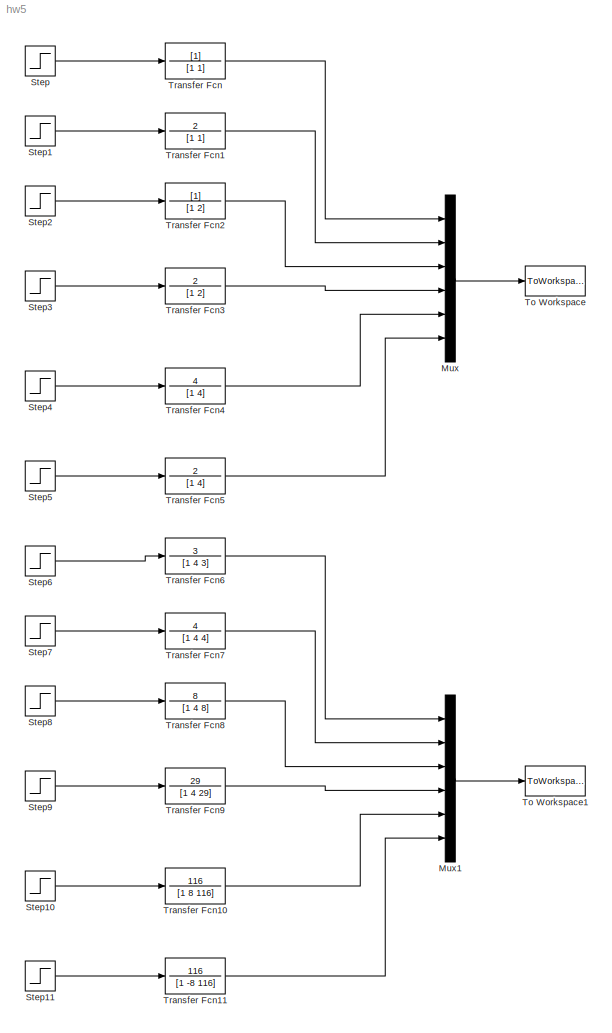
MODEL hw5
KIND model
BLOCK [Mux] Mux
  DisplayOption = bar
  Inputs = 6
  Ports = [6, 1]
BLOCK [Mux] Mux1
  DisplayOption = bar
  Inputs = 6
  Ports = [6, 1]
BLOCK [Step] Step
  SampleTime = 0
  Time = 0
BLOCK [Step] Step1
  SampleTime = 0
  Time = 0
BLOCK [Step] Step10
  SampleTime = 0
  Time = 0
BLOCK [Step] Step11
  SampleTime = 0
  Time = 0
BLOCK [Step] Step2
  SampleTime = 0
  Time = 0
BLOCK [Step] Step3
  SampleTime = 0
  Time = 0
BLOCK [Step] Step4
  SampleTime = 0
  Time = 0
BLOCK [Step] Step5
  SampleTime = 0
  Time = 0
BLOCK [Step] Step6
  SampleTime = 0
  Time = 0
BLOCK [Step] Step7
  SampleTime = 0
  Time = 0
BLOCK [Step] Step8
  SampleTime = 0
  Time = 0
BLOCK [Step] Step9
  SampleTime = 0
  Time = 0
BLOCK [ToWorkspace] To Workspace
  MaxDataPoints = inf
  SampleTime = -1
  SaveFormat = Array
  VariableName = x
BLOCK [ToWorkspace] To Workspace1
  MaxDataPoints = inf
  SampleTime = -1
  SaveFormat = Array
  VariableName = x1
BLOCK [TransferFcn] Transfer Fcn
  Denominator = [1 1]
BLOCK [TransferFcn] Transfer Fcn1
  Denominator = [1 1]
  Numerator = 2
BLOCK [TransferFcn] Transfer Fcn10
  Denominator = [1 8 116]
  Numerator = 116
BLOCK [TransferFcn] Transfer Fcn11
  Denominator = [1 -8 116]
  Numerator = 116
BLOCK [TransferFcn] Transfer Fcn2
  Denominator = [1 2]
BLOCK [TransferFcn] Transfer Fcn3
  Denominator = [1 2]
  Numerator = 2
BLOCK [TransferFcn] Transfer Fcn4
  Denominator = [1 4]
  Numerator = 4
BLOCK [TransferFcn] Transfer Fcn5
  Denominator = [1 4]
  Numerator = 2
BLOCK [TransferFcn] Transfer Fcn6
  Denominator = [1 4 3]
  Numerator = 3
BLOCK [TransferFcn] Transfer Fcn7
  Denominator = [1 4 4]
  Numerator = 4
BLOCK [TransferFcn] Transfer Fcn8
  Denominator = [1 4 8]
  Numerator = 8
BLOCK [TransferFcn] Transfer Fcn9
  Denominator = [1 4 29]
  Numerator = 29
LINE Mux1:1 -> To Workspace1:1
LINE Mux:1 -> To Workspace:1
LINE Step10:1 -> Transfer Fcn10:1
LINE Step11:1 -> Transfer Fcn11:1
LINE Step1:1 -> Transfer Fcn1:1
LINE Step2:1 -> Transfer Fcn2:1
LINE Step3:1 -> Transfer Fcn3:1
LINE Step4:1 -> Transfer Fcn4:1
LINE Step5:1 -> Transfer Fcn5:1
LINE Step6:1 -> Transfer Fcn6:1
LINE Step7:1 -> Transfer Fcn7:1
LINE Step8:1 -> Transfer Fcn8:1
LINE Step9:1 -> Transfer Fcn9:1
LINE Step:1 -> Transfer Fcn:1
LINE Transfer Fcn10:1 -> Mux1:5
LINE Transfer Fcn11:1 -> Mux1:6
LINE Transfer Fcn1:1 -> Mux:2
LINE Transfer Fcn2:1 -> Mux:3
LINE Transfer Fcn3:1 -> Mux:4
LINE Transfer Fcn4:1 -> Mux:5
LINE Transfer Fcn5:1 -> Mux:6
LINE Transfer Fcn6:1 -> Mux1:1
LINE Transfer Fcn7:1 -> Mux1:2
LINE Transfer Fcn8:1 -> Mux1:3
LINE Transfer Fcn9:1 -> Mux1:4
LINE Transfer Fcn:1 -> Mux:1
